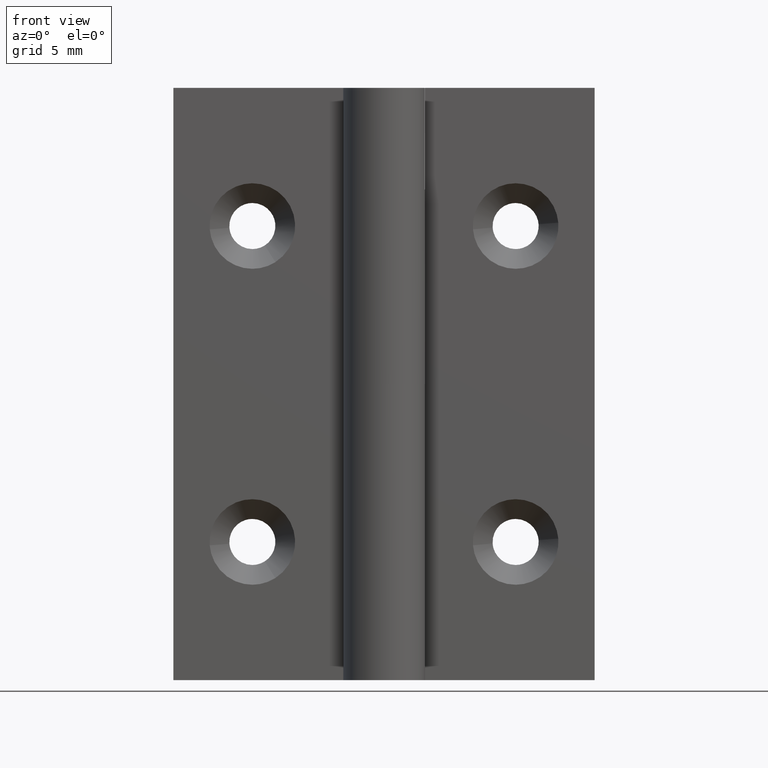
[diagram: clean part render]
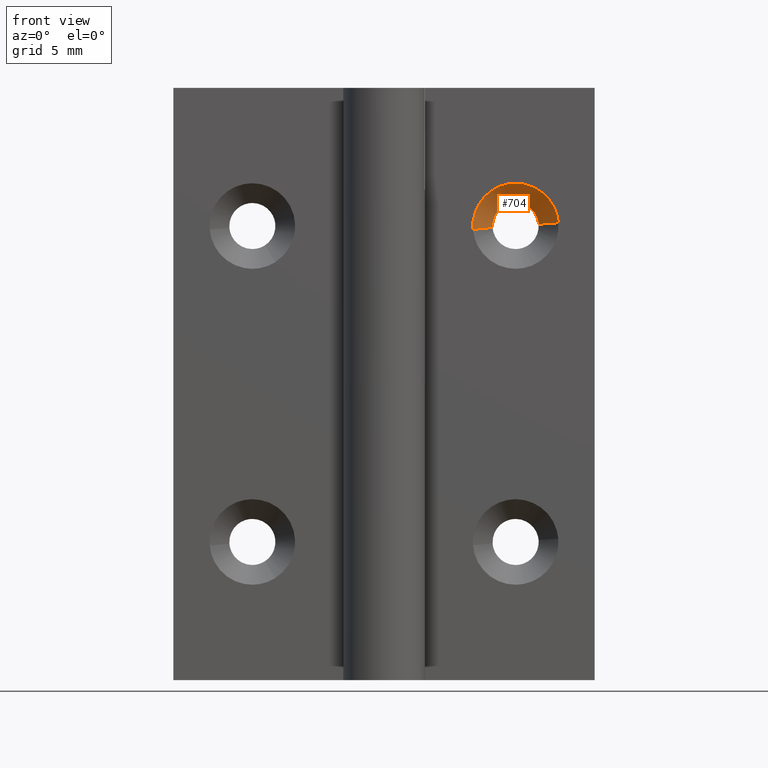
[diagram: same view with one face highlighted and labeled with its STEP entity id]
A machine part, front view. The second image highlights one B-rep face of the part: STEP entity #704.
In plain terms, the highlighted face is a freeform B-spline surface patch.
Its self-contained STEP definition (entity closure, byte-faithful):
#509=CARTESIAN_POINT('',(8.253264102761737,3.0,34.393165055813917));
#510=VERTEX_POINT('',#509);
#554=CARTESIAN_POINT('',(11.744603873788741,3.000001553485615,34.637302171733829));
#555=VERTEX_POINT('',#554);
#571=CARTESIAN_POINT('',(10.0,3.0,36.250000000000007));
#572=VERTEX_POINT('',#571);
#573=CARTESIAN_POINT('',(10.0,3.0,36.250000000000007));
#574=CARTESIAN_POINT('',(11.617683631416464,3.000000776742809,36.249999939057943));
#575=CARTESIAN_POINT('',(11.744603873788742,3.000001553485615,34.637302171733829));
#583=(BOUNDED_CURVE()B_SPLINE_CURVE(2,(#573,#574,#575),.UNSPECIFIED.,.F.,.U.)B_SPLINE_CURVE_WITH_KNOTS((3,3),(0.0,0.236331411067483),.UNSPECIFIED.)CURVE()GEOMETRIC_REPRESENTATION_ITEM()RATIONAL_B_SPLINE_CURVE((1.0,0.723120529222878,0.969723586640758))REPRESENTATION_ITEM(''));
#584=EDGE_CURVE('',#572,#555,#583,.T.);
#586=CARTESIAN_POINT('',(8.253264102761738,2.999999999999999,34.393165055813924));
#587=CARTESIAN_POINT('',(8.250000000000002,3.0,34.446532664227433));
#588=CARTESIAN_POINT('',(8.250000000000000,3.0,34.500000000000000));
#589=CARTESIAN_POINT('',(8.250000000000000,3.000000000000000,36.250000000000007));
#590=CARTESIAN_POINT('',(10.0,3.0,36.250000000000007));
#598=(BOUNDED_CURVE()B_SPLINE_CURVE(2,(#586,#587,#588,#589,#590),.UNSPECIFIED.,.F.,.U.)B_SPLINE_CURVE_WITH_KNOTS((3,2,3),(0.739332962241961,0.750000000000000,1.0),.UNSPECIFIED.)CURVE()GEOMETRIC_REPRESENTATION_ITEM()RATIONAL_B_SPLINE_CURVE((0.976072041673186,0.987502787903373,1.0,0.707106781186547,1.0))REPRESENTATION_ITEM(''));
#599=EDGE_CURVE('',#510,#572,#598,.T.);
#638=CARTESIAN_POINT('',(11.707220934017981,3.037500000000001,34.634361201433933));
#639=CARTESIAN_POINT('',(11.572859732584046,3.037500000000001,36.341582135451908));
#640=CARTESIAN_POINT('',(9.865638798566065,3.037500000000001,36.207220934017982));
#641=CARTESIAN_POINT('',(8.158417864548085,3.037500000000001,36.072859732584043));
#642=CARTESIAN_POINT('',(8.292779065982019,3.037500000000001,34.365638798566067));
#643=CARTESIAN_POINT('',(13.278300344648031,1.461562500000000,34.758007832607539));
#644=CARTESIAN_POINT('',(13.020292512040493,1.461562499999999,38.036308177255577));
#645=CARTESIAN_POINT('',(9.741992167392462,1.461562500000000,37.778300344648031));
#646=CARTESIAN_POINT('',(6.463691822744432,1.461562499999999,37.520292512040498));
#647=CARTESIAN_POINT('',(6.721699655351968,1.461562500000000,34.241992167392461));
#655=(BOUNDED_SURFACE()B_SPLINE_SURFACE(2,1,((#638,#643),(#639,#644),(#640,#645),(#641,#646),(#642,#647)),.UNSPECIFIED.,.F.,.F.,.U.)B_SPLINE_SURFACE_WITH_KNOTS((3,2,3),(2,2),(0.0,5.448461646065105,10.896923292130211),(0.0,2.228712185952350),.UNSPECIFIED.)GEOMETRIC_REPRESENTATION_ITEM()RATIONAL_B_SPLINE_SURFACE(((1.0,1.0),(0.707106781186548,0.707106781186548),(1.0,1.0),(0.707106781186548,0.707106781186548),(1.0,1.0)))REPRESENTATION_ITEM('')SURFACE());
#656=ORIENTED_EDGE('',*,*,#584,.T.);
#657=CARTESIAN_POINT('',(13.239981334648011,1.499999999961411,34.754992061412338));
#658=VERTEX_POINT('',#657);
#659=CARTESIAN_POINT('',(11.744603873788741,3.000001553485615,34.637302171733829));
#660=CARTESIAN_POINT('',(13.239981334648011,1.499999999961411,34.754992061412338));
#661=QUASI_UNIFORM_CURVE('',1,(#659,#660),.UNSPECIFIED.,.F.,.U.);
#662=EDGE_CURVE('',#555,#658,#661,.T.);
#663=ORIENTED_EDGE('',*,*,#662,.T.);
#664=CARTESIAN_POINT('',(10.0,1.500000000000000,37.750000000000007));
#665=VERTEX_POINT('',#664);
#666=CARTESIAN_POINT('',(10.0,1.500000000000000,37.750000000000007));
#667=CARTESIAN_POINT('',(13.004269097342620,1.500000000000000,37.750000000000007));
#668=CARTESIAN_POINT('',(13.239981334648007,1.499999999961411,34.754992061412338));
#676=(BOUNDED_CURVE()B_SPLINE_CURVE(2,(#666,#667,#668),.UNSPECIFIED.,.F.,.U.)B_SPLINE_CURVE_WITH_KNOTS((3,3),(0.0,0.236331300601676),.UNSPECIFIED.)CURVE()GEOMETRIC_REPRESENTATION_ITEM()RATIONAL_B_SPLINE_CURVE((1.0,0.723120658641622,0.969723356106932))REPRESENTATION_ITEM(''));
#677=EDGE_CURVE('',#665,#658,#676,.T.);
#678=ORIENTED_EDGE('',*,*,#677,.F.);
#679=CARTESIAN_POINT('',(6.760018665351989,1.499999999961412,34.245007938587662));
#680=VERTEX_POINT('',#679);
#681=CARTESIAN_POINT('',(6.760018665351989,1.499999999961412,34.245007938587655));
#682=CARTESIAN_POINT('',(6.750000000000001,1.500000000000000,34.372307151929895));
#683=CARTESIAN_POINT('',(6.750000000000001,1.500000000000000,34.500000000000000));
#684=CARTESIAN_POINT('',(6.750000000000001,1.500000000000000,37.750000000000007));
#685=CARTESIAN_POINT('',(10.0,1.500000000000000,37.750000000000007));
#693=(BOUNDED_CURVE()B_SPLINE_CURVE(2,(#681,#682,#683,#684,#685),.UNSPECIFIED.,.F.,.U.)B_SPLINE_CURVE_WITH_KNOTS((3,2,3),(0.736331300601676,0.750000000000000,1.0),.UNSPECIFIED.)CURVE()GEOMETRIC_REPRESENTATION_ITEM()RATIONAL_B_SPLINE_CURVE((0.969723356106931,0.983986122544925,1.0,0.707106781186547,1.0))REPRESENTATION_ITEM(''));
#694=EDGE_CURVE('',#680,#665,#693,.T.);
#695=ORIENTED_EDGE('',*,*,#694,.F.);
#696=CARTESIAN_POINT('',(8.253264102761737,3.0,34.393165055813917));
#697=CARTESIAN_POINT('',(6.760018665351989,1.499999999961412,34.245007938587662));
#698=QUASI_UNIFORM_CURVE('',1,(#696,#697),.UNSPECIFIED.,.F.,.U.);
#699=EDGE_CURVE('',#510,#680,#698,.T.);
#700=ORIENTED_EDGE('',*,*,#699,.F.);
#701=ORIENTED_EDGE('',*,*,#599,.T.);
#702=EDGE_LOOP('',(#656,#663,#678,#695,#700,#701));
#703=FACE_OUTER_BOUND('',#702,.T.);
#704=ADVANCED_FACE('',(#703),#655,.F.);